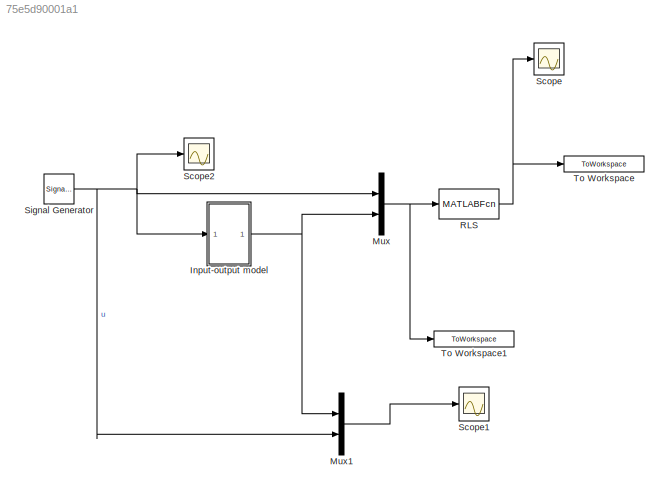
MODEL mdl_75e5d90001a1
KIND model
CONFIG AbsTol = auto
CONFIG EnableMultiTasking = on
CONFIG FixedStep = auto
CONFIG MaxStep = auto
CONFIG MinStep = auto
CONFIG RelTol = 1e-3
CONFIG SampleTimeConstraint = Unconstrained
CONFIG SolverName = VariableStepDiscrete
CONFIG StartTime = 0.0
CONFIG StopTime = 500
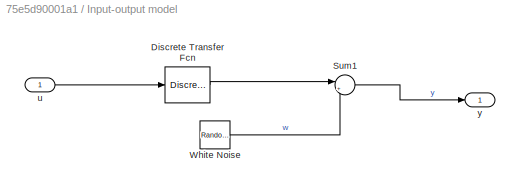
BLOCK [SubSystem] Input-output model
BLOCK [DiscreteTransferFcn] Input-output model/ Discrete Transfer Fcn
  Denominator = [1 -a]
  InputPortMap = u0
  Numerator = [b]
  SampleTime = 1
BLOCK [Sum] Input-output model/Sum1
  Inputs = |++
BLOCK [RandomNumber] Input-output model/White Noise
  DisableCoverage = on
  SampleTime = h
  Seed = 10
  Variance = sigma
BLOCK [Inport] Input-output model/u
BLOCK [Outport] Input-output model/y
BLOCK [Mux] Mux
  DisplayOption = bar
  Inputs = 2
BLOCK [Mux] Mux1
  DisplayOption = bar
  Inputs = 2
BLOCK [MATLABFcn] RLS
  MATLABFcn = rlsupdate
BLOCK [Scope] Scope
  Floating = off
  NumInputPorts = 1
  ScopeSpecificationString = Simulink.scopes.TimeScopeBlockCfg('CurrentConfiguration', extmgr.ConfigurationSet(extmgr.Configuration('Core','General UI',true),extmgr.Configuration('Core','Source UI',true),extmgr.Configuration('Sources','WiredSimulink',true,'DataLoggingVariableName','ScopeData1'),extmgr.Configuration('Visuals','Time Domain',true,'SerializedDisplays',{struct('MinYLimReal','0.04667','MaxYLimReal','0.89551','YLabe...<+1446ch>
BLOCK [Scope] Scope1
  Floating = off
  NumInputPorts = 1
  ScopeSpecificationString = Simulink.scopes.TimeScopeBlockCfg('CurrentConfiguration', extmgr.ConfigurationSet(extmgr.Configuration('Core','General UI',true),extmgr.Configuration('Core','Source UI',true),extmgr.Configuration('Sources','WiredSimulink',true,'DataLoggingSaveFormat','StructureWithTime','DataLoggingLimitDataPoints',true,'DataLoggingDecimation','1','DataLoggingDecimateData',true,'DataLoggingVariableName','ScopeData...<+1819ch>
BLOCK [Scope] Scope2
  Floating = off
  NumInputPorts = 1
  ScopeSpecificationString = Simulink.scopes.TimeScopeBlockCfg('CurrentConfiguration', extmgr.ConfigurationSet(extmgr.Configuration('Core','General UI',true),extmgr.Configuration('Core','Source UI',true),extmgr.Configuration('Sources','WiredSimulink',true,'DataLoggingSaveFormat','StructureWithTime','DataLoggingLimitDataPoints',true,'DataLoggingDecimation','1','DataLoggingDecimateData',true,'DataLoggingVariableName','ScopeData...<+1784ch>
BLOCK [SignalGenerator] Signal Generator
  Amplitude = uA
  Frequency = 1/uP
  WaveForm = square
BLOCK [ToWorkspace] To Workspace
  FixptAsFi = on
  MaxDataPoints = inf
  SampleTime = -1
  SaveFormat = Structure With Time
  VariableName = output
BLOCK [ToWorkspace] To Workspace1
  FixptAsFi = on
  MaxDataPoints = inf
  SampleTime = -1
  SaveFormat = Structure With Time
  VariableName = data
LINE Input-output model/ Discrete Transfer Fcn:1 -> Input-output model/Sum1:1
LINE Input-output model/Sum1:1 -> Input-output model/y:1
LINE Input-output model/White Noise:1 -> Input-output model/Sum1:2
LINE Input-output model/u:1 -> Input-output model/ Discrete Transfer Fcn:1
NET Input-output model:1 -> Mux1:1, Mux:2
LINE Mux1:1 -> Scope1:1
NET Mux:1 -> RLS:1, To Workspace1:1
NET RLS:1 -> Scope:1, To Workspace:1
NET Signal Generator:1 -> Input-output model:1, Mux1:2, Mux:1, Scope2:1
note: NET lines group one-source signal fan-out (src -> all destinations, sorted); 1:1 wires keep LINE
